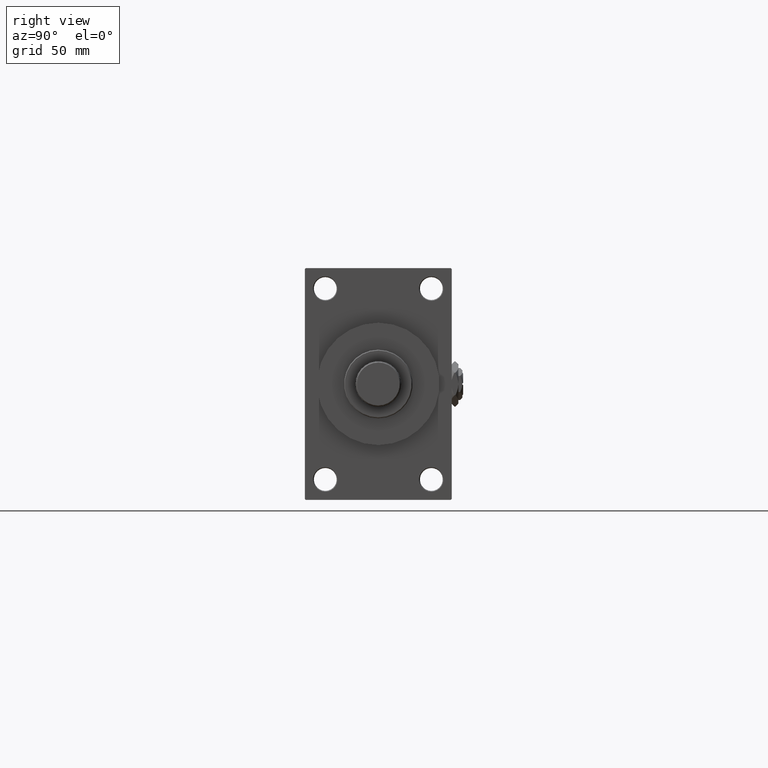
[diagram: clean part render]
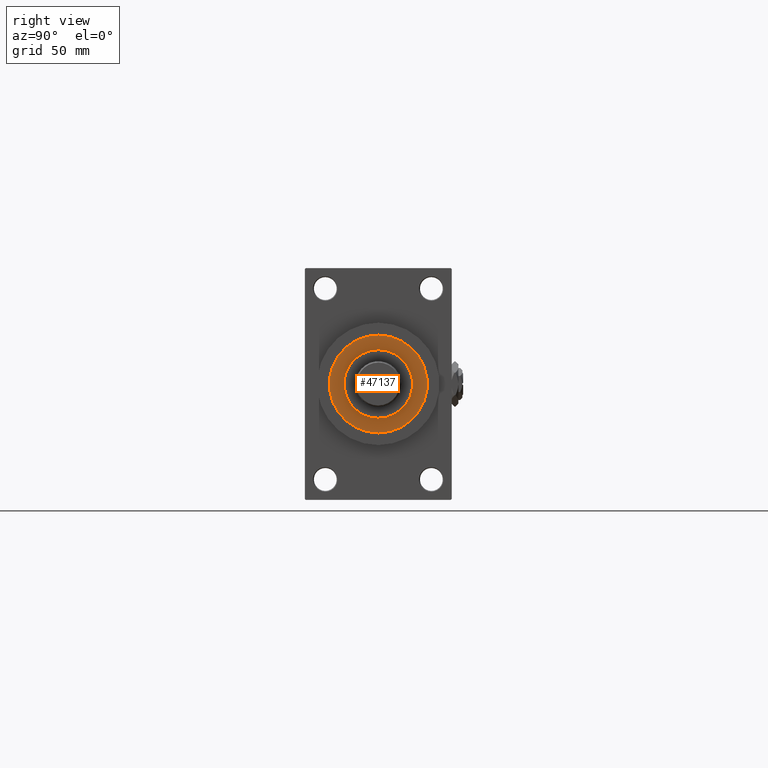
[diagram: same view with one face highlighted and labeled with its STEP entity id]
A machine part, right view. The second image highlights one B-rep face of the part: STEP entity #47137.
In plain terms, the highlighted planar face has unit normal (1, -0, -0).
Its self-contained STEP definition (entity closure, byte-faithful):
#1810 = DIRECTION ( 'NONE',  ( 1.000000000000000000, 0.000000000000000000, 0.000000000000000000 ) ) ;
#1836 = CARTESIAN_POINT ( 'NONE',  ( 21.00000000000000000, 2.571758278209441661E-15, 43.25999999999999801 ) ) ;
#2395 = CARTESIAN_POINT ( 'NONE',  ( 0.000000000000000000, 0.000000000000000000, 43.25999999999999801 ) ) ;
#3787 = CIRCLE ( 'NONE', #15863, 30.00000000000000000 ) ;
#4666 = EDGE_CURVE ( 'NONE', #20422, #21406, #30692, .T. ) ;
#7833 = AXIS2_PLACEMENT_3D ( 'NONE', #20107, #27179, #34957 ) ;
#8712 = CARTESIAN_POINT ( 'NONE',  ( 0.000000000000000000, 0.000000000000000000, 43.25999999999999801 ) ) ;
#10587 = DIRECTION ( 'NONE',  ( 0.000000000000000000, 0.000000000000000000, 1.000000000000000000 ) ) ;
#10954 = EDGE_LOOP ( 'NONE', ( #34709, #36632 ) ) ;
#11565 = FACE_BOUND ( 'NONE', #10954, .T. ) ;
#13317 = AXIS2_PLACEMENT_3D ( 'NONE', #2395, #22498, #18719 ) ;
#14940 = CARTESIAN_POINT ( 'NONE',  ( 30.00000000000000000, 3.673940397442059178E-15, 43.25999999999999801 ) ) ;
#15400 = DIRECTION ( 'NONE',  ( 1.000000000000000000, 0.000000000000000000, 0.000000000000000000 ) ) ;
#15655 = CARTESIAN_POINT ( 'NONE',  ( 0.000000000000000000, 0.000000000000000000, 43.25999999999999801 ) ) ;
#15863 = AXIS2_PLACEMENT_3D ( 'NONE', #15655, #49625, #15400 ) ;
#15978 = EDGE_CURVE ( 'NONE', #21406, #20422, #35001, .T. ) ;
#17407 = CARTESIAN_POINT ( 'NONE',  ( 0.000000000000000000, 0.000000000000000000, 43.25999999999999801 ) ) ;
#18329 = AXIS2_PLACEMENT_3D ( 'NONE', #17407, #10587, #1810 ) ;
#18719 = DIRECTION ( 'NONE',  ( 1.000000000000000000, 0.000000000000000000, 0.000000000000000000 ) ) ;
#20107 = CARTESIAN_POINT ( 'NONE',  ( 0.000000000000000000, 0.000000000000000000, 43.25999999999999801 ) ) ;
#20422 = VERTEX_POINT ( 'NONE', #44207 ) ;
#21406 = VERTEX_POINT ( 'NONE', #1836 ) ;
#22498 = DIRECTION ( 'NONE',  ( 0.000000000000000000, 0.000000000000000000, 1.000000000000000000 ) ) ;
#22625 = ORIENTED_EDGE ( 'NONE', *, *, #23068, .T. ) ;
#23068 = EDGE_CURVE ( 'NONE', #39233, #39388, #3787, .T. ) ;
#23400 = PLANE ( 'NONE',  #7833 ) ;
#23833 = DIRECTION ( 'NONE',  ( 0.000000000000000000, 0.000000000000000000, 1.000000000000000000 ) ) ;
#24699 = EDGE_CURVE ( 'NONE', #39388, #39233, #40019, .T. ) ;
#27179 = DIRECTION ( 'NONE',  ( 0.000000000000000000, 0.000000000000000000, 1.000000000000000000 ) ) ;
#28140 = FACE_OUTER_BOUND ( 'NONE', #34157, .T. ) ;
#30692 = CIRCLE ( 'NONE', #49171, 21.00000000000000000 ) ;
#30871 = DIRECTION ( 'NONE',  ( 1.000000000000000000, 0.000000000000000000, 0.000000000000000000 ) ) ;
#34157 = EDGE_LOOP ( 'NONE', ( #35576, #22625 ) ) ;
#34709 = ORIENTED_EDGE ( 'NONE', *, *, #4666, .F. ) ;
#34957 = DIRECTION ( 'NONE',  ( 1.000000000000000000, 0.000000000000000000, -0.000000000000000000 ) ) ;
#35001 = CIRCLE ( 'NONE', #13317, 21.00000000000000000 ) ;
#35576 = ORIENTED_EDGE ( 'NONE', *, *, #24699, .T. ) ;
#36632 = ORIENTED_EDGE ( 'NONE', *, *, #15978, .F. ) ;
#39233 = VERTEX_POINT ( 'NONE', #14940 ) ;
#39388 = VERTEX_POINT ( 'NONE', #49552 ) ;
#40019 = CIRCLE ( 'NONE', #18329, 30.00000000000000000 ) ;
#44207 = CARTESIAN_POINT ( 'NONE',  ( -21.00000000000000000, 0.000000000000000000, 43.25999999999999801 ) ) ;
#47137 = ADVANCED_FACE ( 'NONE', ( #11565, #28140 ), #23400, .T. ) ;
#49171 = AXIS2_PLACEMENT_3D ( 'NONE', #8712, #23833, #30871 ) ;
#49552 = CARTESIAN_POINT ( 'NONE',  ( -30.00000000000000000, 0.000000000000000000, 43.25999999999999801 ) ) ;
#49625 = DIRECTION ( 'NONE',  ( 0.000000000000000000, 0.000000000000000000, 1.000000000000000000 ) ) ;